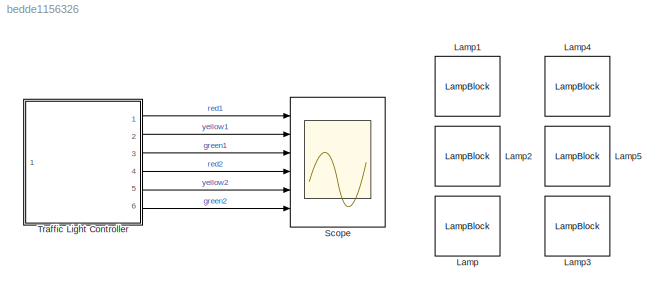
MODEL slx_bedde1156326
KIND model
CONFIG AbsTol = auto
CONFIG EnableMultiTasking = off
CONFIG FixedStep = auto
CONFIG MaxStep = auto
CONFIG MinStep = auto
CONFIG RelTol = 1e-3
CONFIG SampleTimeConstraint = Unconstrained
CONFIG SolverName = VariableStepAuto
CONFIG StartTime = 0.0
CONFIG StopTime = 60
WORKSPACE source: mxarray member
WORKSPACE courseObject: object (value not decoded)
BLOCK [LampBlock] Lamp
BLOCK [LampBlock] Lamp1
BLOCK [LampBlock] Lamp2
BLOCK [LampBlock] Lamp3
BLOCK [LampBlock] Lamp4
BLOCK [LampBlock] Lamp5
BLOCK [Scope] Scope
  Floating = off
  NumInputPorts = 6
  Ports = [6]
  ScopeSpecificationString = Simulink.scopes.TimeScopeBlockCfg('CurrentConfiguration', extmgr.ConfigurationSet(extmgr.Configuration('Core','General UI',true),extmgr.Configuration('Core','Source UI',true),extmgr.Configuration('Sources','WiredSimulink',true),extmgr.Configuration('Visuals','Time Domain',true,'SerializedDisplays',{struct('MinYLimReal','-0.125','MaxYLimReal','1.125','YLabelReal','','MinYLimMag','0.00000','MaxYLimM...<+5485ch>
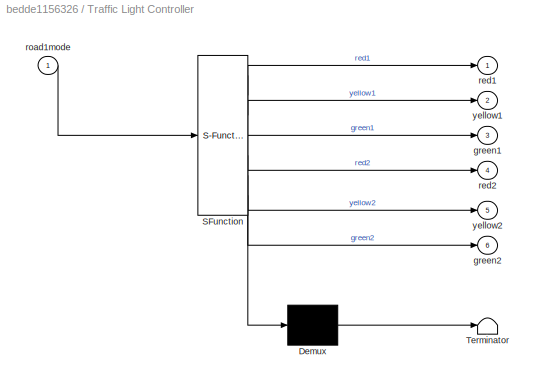
BLOCK [SubSystem] Traffic Light Controller
  ErrorFcn = Stateflow.Translate.translate
  PermitHierarchicalResolution = ExplicitOnly
  Ports = [1, 6]
  RequestExecContextInheritance = off
  SFBlockType = Chart
  TreatAsAtomicUnit = on
BLOCK [Demux] Traffic Light Controller/ Demux 
  Outputs = 1
  Ports = [1, 1]
BLOCK [S-Function] Traffic Light Controller/ SFunction 
  EnableBusSupport = on
  FunctionName = sf_sfun
  PortCounts = [1 7]
  Ports = [1, 7]
  SFcnIsStateOwnerBlock = off
  SFunctionDeploymentMode = off
  Tag = Stateflow S-Function 3
BLOCK [Terminator] Traffic Light Controller/ Terminator 
BLOCK [Outport] Traffic Light Controller/green1
  Port = 3
  VectorParamsAs1DForOutWhenUnconnected = off
BLOCK [Outport] Traffic Light Controller/green2
  Port = 6
BLOCK [Outport] Traffic Light Controller/red1
  VectorParamsAs1DForOutWhenUnconnected = off
BLOCK [Outport] Traffic Light Controller/red2
  Port = 4
BLOCK [Inport] Traffic Light Controller/road1mode
BLOCK [Outport] Traffic Light Controller/yellow1
  Port = 2
  VectorParamsAs1DForOutWhenUnconnected = off
BLOCK [Outport] Traffic Light Controller/yellow2
  Port = 5
LINE Traffic Light Controller:1 -> Scope:1
LINE Traffic Light Controller:2 -> Scope:2
LINE Traffic Light Controller:3 -> Scope:3
LINE Traffic Light Controller:4 -> Scope:4
LINE Traffic Light Controller:5 -> Scope:5
LINE Traffic Light Controller:6 -> Scope:6
CHART Traffic Light Controller states=5 transitions=6
  STATE_LABEL 'Road1Go\nentry:\ngreen1 = 1;\nred2 = 1;\nred1 = 0;\nyellow2 = 0;'
  STATE_LABEL 'Road1Wait\nentry:\ngreen1 = 0;\nyellow1 = 1;\nred2 = 1;\n'
  STATE_LABEL 'Start1\nentry:\nred1 = 1;\nred2 = 1;\nyellow1 = 0;\nyellow2 = 0;\n'
  STATE_LABEL 'Road2Wait\nentry:\ngreen2 = 0;\nyellow2 = 1;\nred1 = 1;\n'
  STATE_LABEL 'Road2Go\nentry:\nyellow1 = 0;\nred1 = 1;\ngreen2 = 1;\nred2 = 0;\n'
CHART  states=0 transitions=0
